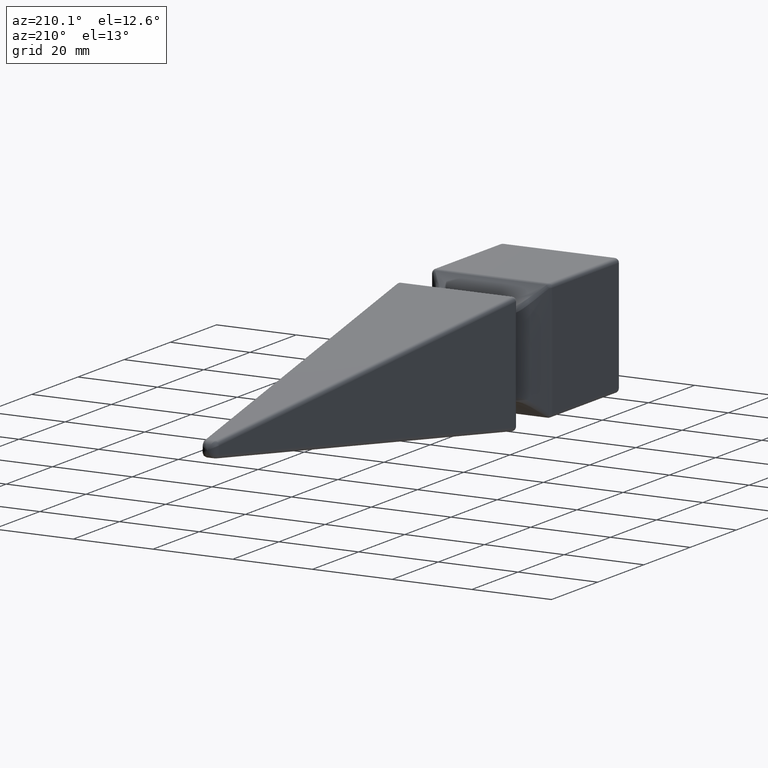
[diagram: clean part render]
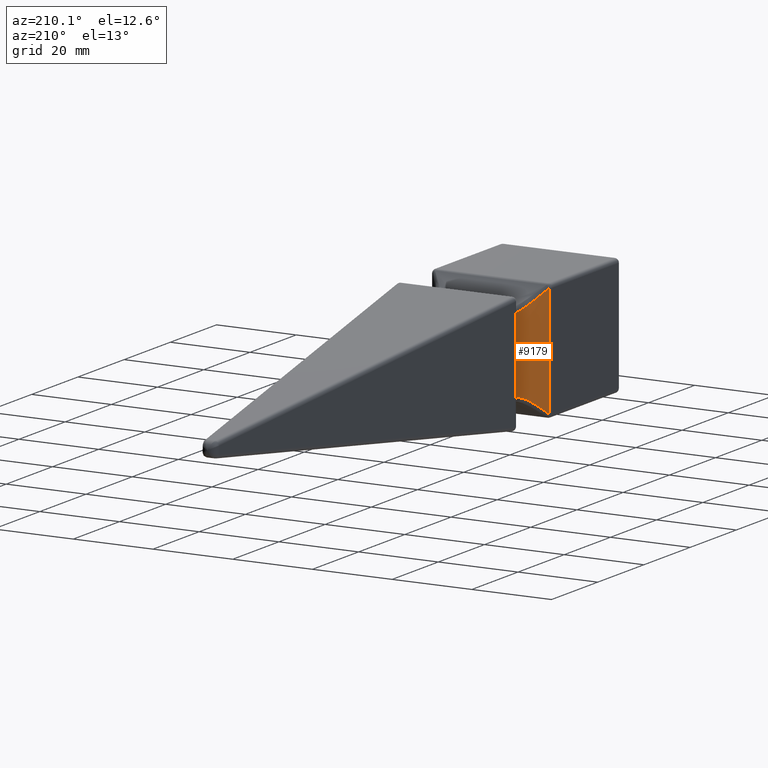
[diagram: same view with one face highlighted and labeled with its STEP entity id]
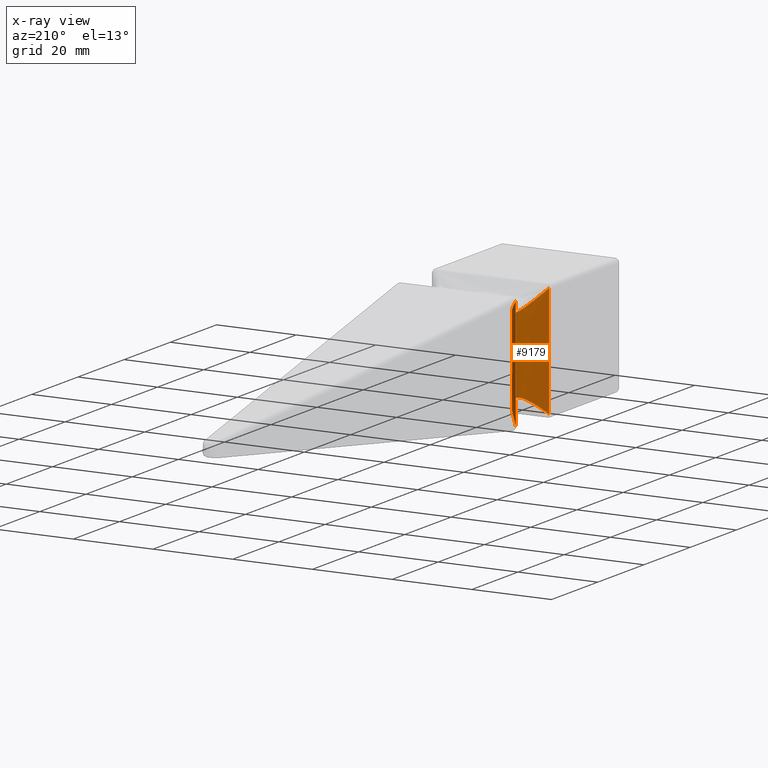
[diagram: x-ray of the same camera — body ghosted, the highlighted face saturated]
A machine part, auxiliary view. The second image highlights one B-rep face of the part: STEP entity #9179.
The next image is the same camera in x-ray: the body ghosted, the highlighted face saturated — about 0% of this face is hidden behind the body in this view.
In plain terms, the highlighted face is a freeform B-spline surface patch.
Its self-contained STEP definition (entity closure, byte-faithful):
#84 = CARTESIAN_POINT ( 'NONE',  ( -10.49705690463908603, -38.63304380869925581, -9.496586050708542004 ) ) ;
#225 = CARTESIAN_POINT ( 'NONE',  ( -11.54236746915318257, -35.37626443680802169, -10.67698530742834961 ) ) ;
#266 = CARTESIAN_POINT ( 'NONE',  ( -10.79773338725615339, -37.06165103892786306, -9.842303679434433406 ) ) ;
#316 = VERTEX_POINT ( 'NONE', #1645 ) ;
#641 = CARTESIAN_POINT ( 'NONE',  ( -12.36504781238198625, -43.86207762756022532, 11.57579313578682623 ) ) ;
#684 = CARTESIAN_POINT ( 'NONE',  ( -10.79773338725362564, -37.06165103893595614, 9.842303679431575247 ) ) ;
#759 = CARTESIAN_POINT ( 'NONE',  ( -10.71326603237157826, -40.64350924055765546, 9.745831828952885800 ) ) ;
#824 = VERTEX_POINT ( 'NONE', #10809 ) ;
#910 = CARTESIAN_POINT ( 'NONE',  ( -14.59973625279209308, -31.84131973336556953, -13.94205719625424322 ) ) ;
#1013 = CARTESIAN_POINT ( 'NONE',  ( -14.99999999999999822, -31.50000000000000000, 15.00000000000000178 ) ) ;
#1055 = CARTESIAN_POINT ( 'NONE',  ( -14.99999999999999822, -46.50000000000000711, 15.00000000000000178 ) ) ;
#1142 = CARTESIAN_POINT ( 'NONE',  ( -14.59973625279209308, -31.84131973336556953, -13.94205719625424322 ) ) ;
#1184 = CARTESIAN_POINT ( 'NONE',  ( -11.99999999999999822, -34.00000000000000000, 11.99999999999999645 ) ) ;
#1228 = CARTESIAN_POINT ( 'NONE',  ( -10.64600501085877760, -37.63470668417473064, -9.668625340295120552 ) ) ;
#1275 = CARTESIAN_POINT ( 'NONE',  ( -13.69662602575462707, -45.33952658536001934, -12.99505609503254178 ) ) ;
#1611 = CARTESIAN_POINT ( 'NONE',  ( -10.50329809572492579, -39.46116345790520086, 9.503825747294142090 ) ) ;
#1645 = CARTESIAN_POINT ( 'NONE',  ( -14.59973625279209841, -31.84131973336556953, 13.94205719625424145 ) ) ;
#1658 = CARTESIAN_POINT ( 'NONE',  ( -11.72833512713233262, -35.07091505618799232, 10.88167327497048831 ) ) ;
#1743 = CARTESIAN_POINT ( 'NONE',  ( -10.66497541907971147, -40.44928532295176637, 9.690423308950064651 ) ) ;
#1880 = B_SPLINE_CURVE_WITH_KNOTS ( 'NONE', 3,
 ( #6843, #3869, #5860, #910 ),
 .UNSPECIFIED., .F., .F.,
 ( 4, 4 ),
 ( 0.000000000000000000, 0.02788411439250853413 ),
 .UNSPECIFIED. ) ;
#2004 = CARTESIAN_POINT ( 'NONE',  ( -15.00000000000000000, -46.50000000000000711, -4.999999999999998224 ) ) ;
#2005 = CARTESIAN_POINT ( 'NONE',  ( -11.20486276850408203, -36.01459371712515178, -10.30217187938122514 ) ) ;
#2054 = CARTESIAN_POINT ( 'NONE',  ( -12.00000000000000178, -34.00000000000000000, -11.99999999999999822 ) ) ;
#2055 = CARTESIAN_POINT ( 'NONE',  ( -10.50329809572407136, -39.46116345789342716, -9.503825747293157988 ) ) ;
#2095 = CARTESIAN_POINT ( 'NONE',  ( -15.00000000000000000, -31.50000000000000000, -4.999999999999998224 ) ) ;
#2138 = B_SPLINE_CURVE_WITH_KNOTS ( 'NONE', 3,
 ( #1142, #8008, #9008, #10000, #10977, #6107, #225, #2005, #6149, #2984, #266, #7919, #1228, #10839, #84, #2055, #2317, #3281, #8217, #8260, #4283, #5306, #3198, #3360, #8134, #12147, #10160, #1275, #11146, #2361 ),
 .UNSPECIFIED., .F., .F.,
 ( 4, 2, 2, 2, 2, 2, 2, 2, 2, 2, 2, 2, 2, 2, 4 ),
 ( 0.0006709239811147957701, 0.003121659786218190531, 0.005572395591321585399, 0.006797763493873281750, 0.008023131396424978967, 0.008635815347700826275, 0.009248499298976673583, 0.01047386720152836646, 0.01169923510408006108, 0.01231191905535589798, 0.01292460300663173661, 0.01414997090918343123, 0.01537533881173512411, 0.01782607461683852548, 0.02027681042194192165 ),
 .UNSPECIFIED. ) ;
#2141 = CARTESIAN_POINT ( 'NONE',  ( -12.00000000000000178, -44.00000000000000711, 3.999999999999999112 ) ) ;
#2187 = CARTESIAN_POINT ( 'NONE',  ( -15.00000000000000178, -46.50000000000000711, -14.99999999999999822 ) ) ;
#2317 = CARTESIAN_POINT ( 'NONE',  ( -10.54730077285980094, -39.86267056055906721, -9.555002582034079595 ) ) ;
#2361 = CARTESIAN_POINT ( 'NONE',  ( -14.65517035725227402, -46.20691539187560437, -13.99999999998575007 ) ) ;
#2534 = CARTESIAN_POINT ( 'NONE',  ( -14.65517035726590933, -46.20691539188742780, 4.666666666666669627 ) ) ;
#2607 = CARTESIAN_POINT ( 'NONE',  ( -10.53534898113314355, -38.22687965091161288, 9.541152796657515367 ) ) ;
#2651 = CARTESIAN_POINT ( 'NONE',  ( -12.31346190632519111, -34.20392332680034997, 11.52011638477593714 ) ) ;
#2693 = CARTESIAN_POINT ( 'NONE',  ( -14.65517035725227402, -46.20691539187560437, -13.99999999998575007 ) ) ;
#2858 = CARTESIAN_POINT ( 'NONE',  ( -13.64515633541527251, -32.71108271496693476, 12.94073846677454576 ) ) ;
#2983 = CARTESIAN_POINT ( 'NONE',  ( -12.00000000000000178, -44.00000000000000711, -4.000000000000000888 ) ) ;
#2984 = CARTESIAN_POINT ( 'NONE',  ( -10.85722934265764117, -36.87945426187537379, -9.910030508807967209 ) ) ;
#3031 = CARTESIAN_POINT ( 'NONE',  ( -9.000000000000005329, -38.99999999999999289, -3.000000000000000444 ) ) ;
#3073 = CARTESIAN_POINT ( 'NONE',  ( -15.00000000000000178, -31.50000000000000000, -14.99999999999999822 ) ) ;
#3198 = CARTESIAN_POINT ( 'NONE',  ( -11.24319780276056413, -42.06461013654997316, -10.34500734159435886 ) ) ;
#3281 = CARTESIAN_POINT ( 'NONE',  ( -10.66497541907685509, -40.44928532293942425, -9.690423308946781944 ) ) ;
#3360 = CARTESIAN_POINT ( 'NONE',  ( -11.58878565564015339, -42.70292903659249362, -10.72819811197011397 ) ) ;
#3368 = CARTESIAN_POINT ( 'NONE',  ( -14.65517035726571748, -46.20691539188725727, 13.99999999999982236 ) ) ;
#3626 = CARTESIAN_POINT ( 'NONE',  ( -10.88505524197727148, -41.20100380065736090, 9.941624227348649256 ) ) ;
#3869 = CARTESIAN_POINT ( 'NONE',  ( -14.59973625279212150, -31.84131973336554822, 4.647352398751423586 ) ) ;
#3967 = CARTESIAN_POINT ( 'NONE',  ( -15.00000000000000000, -46.50000000000000711, 5.000000000000001776 ) ) ;
#4016 = CARTESIAN_POINT ( 'NONE',  ( -12.00000000000000178, -44.00000000000000711, -11.99999999999999822 ) ) ;
#4105 = CARTESIAN_POINT ( 'NONE',  ( -9.000000000000001776, -38.99999999999999289, 2.999999999999996003 ) ) ;
#4283 = CARTESIAN_POINT ( 'NONE',  ( -10.88505524197295138, -41.20100380064509693, -9.941624227343734077 ) ) ;
#4432 = B_SPLINE_CURVE_WITH_KNOTS ( 'NONE', 3,
 ( #12411, #8405, #2534, #8448 ),
 .UNSPECIFIED., .F., .F.,
 ( 4, 4 ),
 ( 0.000000000000000000, 0.02800000000000001099 ),
 .UNSPECIFIED. ) ;
#4538 = CARTESIAN_POINT ( 'NONE',  ( -11.77648272805419261, -43.00471090106254479, 10.93445859012211763 ) ) ;
#4582 = CARTESIAN_POINT ( 'NONE',  ( -10.69218633578991096, -37.43863567622364030, 9.721676534671560788 ) ) ;
#4626 = CARTESIAN_POINT ( 'NONE',  ( -11.20486276850115637, -36.01459371713119850, 10.30217187937793888 ) ) ;
#5306 = CARTESIAN_POINT ( 'NONE',  ( -11.08673754063262251, -41.73114043598582157, -10.16965363140852574 ) ) ;
#5329 = VERTEX_POINT ( 'NONE', #2693 ) ;
#5342 = CARTESIAN_POINT ( 'NONE',  ( -14.65517035726571748, -46.20691539188725727, 13.99999999999982236 ) ) ;
#5514 = CARTESIAN_POINT ( 'NONE',  ( -11.08673754063795336, -41.73114043599799317, 10.16965363141452983 ) ) ;
#5561 = CARTESIAN_POINT ( 'NONE',  ( -10.85722934265501038, -36.87945426188310449, 9.910030508804984706 ) ) ;
#5652 = CARTESIAN_POINT ( 'NONE',  ( -14.17029635647004504, -45.78642169379497773, 13.49330816687737666 ) ) ;
#5860 = CARTESIAN_POINT ( 'NONE',  ( -14.59973625279212150, -31.84131973336554822, -4.647352398751420033 ) ) ;
#5873 = CARTESIAN_POINT ( 'NONE',  ( -14.11595439233415483, -32.26369320378786654, 13.43625562556586317 ) ) ;
#6103 = B_SPLINE_CURVE_WITH_KNOTS ( 'NONE', 3,
 ( #3368, #5652, #8650, #9480, #641, #4538, #7532, #8522, #5514, #3626, #6649, #759, #1743, #7483, #1611, #8486, #2607, #10455, #4582, #684, #5561, #6568, #4626, #11479, #1658, #2651, #9526, #2858, #5873, #12576 ),
 .UNSPECIFIED., .F., .F.,
 ( 4, 2, 2, 2, 2, 2, 2, 2, 2, 2, 2, 2, 2, 2, 4 ),
 ( 0.0005778928267492701616, 0.003030612038855311566, 0.005483331250961353404, 0.006709690857014375190, 0.007936050463067396976, 0.008549230266093908737, 0.009162410069120420497, 0.01038876967517342667, 0.01161512928122643284, 0.01222830908425293593, 0.01284148888727944075, 0.01406784849333244519, 0.01529420809938544963, 0.01774692731149146024, 0.02019964652359746565 ),
 .UNSPECIFIED. ) ;
#6106 = CARTESIAN_POINT ( 'NONE',  ( -12.00000000000000178, -34.00000000000000000, 3.999999999999999112 ) ) ;
#6107 = CARTESIAN_POINT ( 'NONE',  ( -11.72833512713517301, -35.07091505618348037, -10.88167327497358983 ) ) ;
#6149 = CARTESIAN_POINT ( 'NONE',  ( -11.05249070708437920, -36.34829797760249193, -10.13112407552696581 ) ) ;
#6568 = CARTESIAN_POINT ( 'NONE',  ( -11.05249070708150505, -36.34829797760919234, 10.13112407552374350 ) ) ;
#6649 = CARTESIAN_POINT ( 'NONE',  ( -10.82336920291401228, -41.01926032387576271, 9.871503904632506377 ) ) ;
#6758 = EDGE_CURVE ( 'NONE', #824, #5329, #2138, .T. ) ;
#6843 = CARTESIAN_POINT ( 'NONE',  ( -14.59973625279209841, -31.84131973336556953, 13.94205719625424145 ) ) ;
#7170 = ORIENTED_EDGE ( 'NONE', *, *, #6758, .T. ) ;
#7176 = ORIENTED_EDGE ( 'NONE', *, *, #10467, .T. ) ;
#7461 = ORIENTED_EDGE ( 'NONE', *, *, #11185, .T. ) ;
#7483 = CARTESIAN_POINT ( 'NONE',  ( -10.54730077286143519, -39.86267056057104696, 9.555002582035982073 ) ) ;
#7532 = CARTESIAN_POINT ( 'NONE',  ( -11.58878565564736363, -42.70292903660466521, 10.72819811197805784 ) ) ;
#7601 = FACE_OUTER_BOUND ( 'NONE', #10900, .T. ) ;
#7860 = ORIENTED_EDGE ( 'NONE', *, *, #12661, .T. ) ;
#7918 = CARTESIAN_POINT ( 'NONE',  ( -11.99999999999999822, -44.00000000000000711, 11.99999999999999645 ) ) ;
#7919 = CARTESIAN_POINT ( 'NONE',  ( -10.69218633579215094, -37.43863567621473010, -9.721676534674113412 ) ) ;
#7965 = CARTESIAN_POINT ( 'NONE',  ( -15.00000000000000000, -31.50000000000000000, 5.000000000000001776 ) ) ;
#8008 = CARTESIAN_POINT ( 'NONE',  ( -14.11595439233472504, -32.26369320378739047, -13.43625562556644404 ) ) ;
#8134 = CARTESIAN_POINT ( 'NONE',  ( -11.77648272804652940, -43.00471090105057925, -10.93445859011370480 ) ) ;
#8217 = CARTESIAN_POINT ( 'NONE',  ( -10.71326603236831154, -40.64350924054522807, -9.745831828949132358 ) ) ;
#8260 = CARTESIAN_POINT ( 'NONE',  ( -10.82336920291003679, -41.01926032386343479, -9.871503904627969561 ) ) ;
#8405 = CARTESIAN_POINT ( 'NONE',  ( -14.65517035726590933, -46.20691539188742780, -4.666666666666664298 ) ) ;
#8448 = CARTESIAN_POINT ( 'NONE',  ( -14.65517035726571748, -46.20691539188725727, 13.99999999999982236 ) ) ;
#8486 = CARTESIAN_POINT ( 'NONE',  ( -10.49705690463841279, -38.63304380871052501, 9.496586050707751525 ) ) ;
#8522 = CARTESIAN_POINT ( 'NONE',  ( -11.24319780276653269, -42.06461013656215187, 10.34500734160102198 ) ) ;
#8650 = CARTESIAN_POINT ( 'NONE',  ( -13.69662602576645938, -45.33952658537167935, 12.99505609504505266 ) ) ;
#8958 = CARTESIAN_POINT ( 'NONE',  ( -9.000000000000005329, -38.99999999999999289, 8.999999999999994671 ) ) ;
#9008 = CARTESIAN_POINT ( 'NONE',  ( -13.64515633541635431, -32.71108271496589737, -12.94073846677571105 ) ) ;
#9179 = ADVANCED_FACE ( 'NONE', ( #7601 ), #11242, .T. ) ;
#9480 = CARTESIAN_POINT ( 'NONE',  ( -12.79414680068567556, -44.37667248520164520, 12.03649374629381086 ) ) ;
#9526 = CARTESIAN_POINT ( 'NONE',  ( -12.74298353016038909, -33.68273373317627772, 11.98175833090951237 ) ) ;
#9904 = CARTESIAN_POINT ( 'NONE',  ( -9.000000000000005329, -38.99999999999999289, -9.000000000000005329 ) ) ;
#10000 = CARTESIAN_POINT ( 'NONE',  ( -12.74298353016242658, -33.68273373317392583, -11.98175833091168840 ) ) ;
#10160 = CARTESIAN_POINT ( 'NONE',  ( -12.79414680067562493, -44.37667248518996388, -12.03649374628305146 ) ) ;
#10297 = VERTEX_POINT ( 'NONE', #5342 ) ;
#10455 = CARTESIAN_POINT ( 'NONE',  ( -10.64600501085674367, -37.63470668418399612, 9.668625340292781090 ) ) ;
#10467 = EDGE_CURVE ( 'NONE', #316, #824, #1880, .T. ) ;
#10809 = CARTESIAN_POINT ( 'NONE',  ( -14.59973625279209308, -31.84131973336556953, -13.94205719625424322 ) ) ;
#10839 = CARTESIAN_POINT ( 'NONE',  ( -10.53534898113444029, -38.22687965090143791, -9.541152796659018165 ) ) ;
#10900 = EDGE_LOOP ( 'NONE', ( #7170, #7860, #7461, #7176 ) ) ;
#10977 = CARTESIAN_POINT ( 'NONE',  ( -12.31346190632763005, -34.20392332679727332, -11.52011638477855016 ) ) ;
#11021 = CARTESIAN_POINT ( 'NONE',  ( -12.00000000000000178, -34.00000000000000000, -4.000000000000000888 ) ) ;
#11146 = CARTESIAN_POINT ( 'NONE',  ( -14.17029635645740626, -45.78642169378331772, -13.49330816686409307 ) ) ;
#11185 = EDGE_CURVE ( 'NONE', #10297, #316, #6103, .T. ) ;
#11242 = B_SPLINE_SURFACE_WITH_KNOTS ( 'NONE', 3, 3, ( 
 ( #1013, #1184, #8958, #7918, #1055 ),
 ( #7965, #6106, #4105, #2141, #3967 ),
 ( #2095, #11021, #3031, #2983, #2004 ),
 ( #3073, #2054, #9904, #4016, #2187 ) ),
 .UNSPECIFIED., .F., .F., .F.,
 ( 4, 4 ),
 ( 4, 1, 4 ),
 ( 0.000000000000000000, 1.000000000000000000 ),
 ( 0.000000000000000000, 0.5000000000000000000, 1.000000000000000000 ),
 .UNSPECIFIED. ) ;
#11479 = CARTESIAN_POINT ( 'NONE',  ( -11.54236746915026046, -35.37626443681299548, 10.67698530742511664 ) ) ;
#12147 = CARTESIAN_POINT ( 'NONE',  ( -12.36504781237284689, -43.86207762754850847, -11.57579313577696212 ) ) ;
#12411 = CARTESIAN_POINT ( 'NONE',  ( -14.65517035725227402, -46.20691539187560437, -13.99999999998575007 ) ) ;
#12576 = CARTESIAN_POINT ( 'NONE',  ( -14.59973625279209841, -31.84131973336556953, 13.94205719625424145 ) ) ;
#12661 = EDGE_CURVE ( 'NONE', #5329, #10297, #4432, .T. ) ;